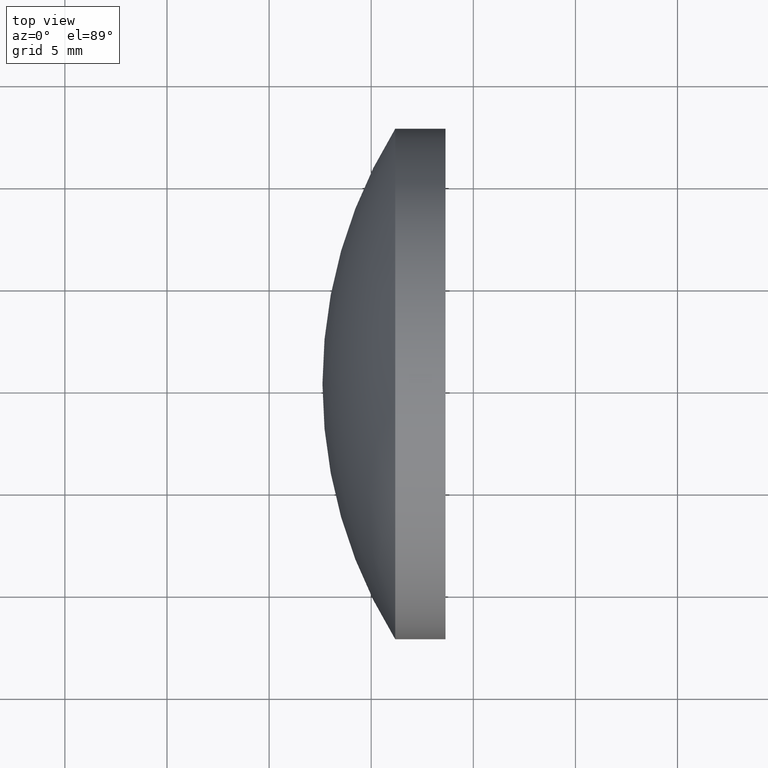
[diagram: clean part render]
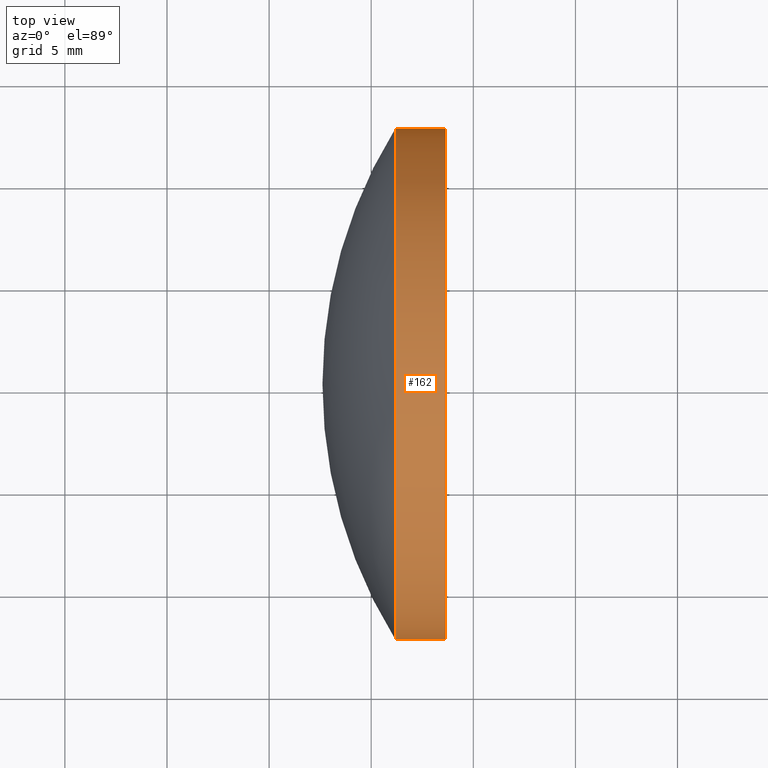
[diagram: same view with one face highlighted and labeled with its STEP entity id]
A machine part, top view. The second image highlights one B-rep face of the part: STEP entity #162.
In plain terms, the highlighted cylindrical surface (partial cylindrical patch) has radius 12.5 mm, axis along (-1, -0, -0).
Its self-contained STEP definition (entity closure, byte-faithful):
#1 = EDGE_CURVE ( 'NONE', #27, #183, #155, .T. ) ;
#8 = CARTESIAN_POINT ( 'NONE',  ( 115.9444912979631500, 77.71684047094031200, 1.530808498934189500E-015 ) ) ;
#15 = ORIENTED_EDGE ( 'NONE', *, *, #161, .T. ) ;
#17 = CARTESIAN_POINT ( 'NONE',  ( 115.9444912979631800, 52.71684047094034000, 0.0000000000000000000 ) ) ;
#20 = DIRECTION ( 'NONE',  ( 0.0000000000000000000, -1.000000000000000000, 0.0000000000000000000 ) ) ;
#22 = CARTESIAN_POINT ( 'NONE',  ( 128.6408507947504100, 77.71684047094034000, 0.0000000000000000000 ) ) ;
#23 = DIRECTION ( 'NONE',  ( -1.000000000000000000, -6.937607244762875000E-016, -0.0000000000000000000 ) ) ;
#26 = CIRCLE ( 'NONE', #58, 12.49999999999999100 ) ;
#27 = VERTEX_POINT ( 'NONE', #45 ) ;
#39 = CARTESIAN_POINT ( 'NONE',  ( 115.9444912979631700, 65.21684047094032600, 0.0000000000000000000 ) ) ;
#43 = EDGE_CURVE ( 'NONE', #27, #98, #109, .T. ) ;
#44 = CYLINDRICAL_SURFACE ( 'NONE', #190, 12.49999999999998400 ) ;
#45 = CARTESIAN_POINT ( 'NONE',  ( 128.6408507947504600, 52.71684047094027600, -1.530808498934191500E-015 ) ) ;
#52 = ORIENTED_EDGE ( 'NONE', *, *, #63, .F. ) ;
#53 = VECTOR ( 'NONE', #144, 1000.000000000000000 ) ;
#54 = DIRECTION ( 'NONE',  ( 0.0000000000000000000, -1.000000000000000000, 0.0000000000000000000 ) ) ;
#58 = AXIS2_PLACEMENT_3D ( 'NONE', #127, #23, #54 ) ;
#63 = EDGE_CURVE ( 'NONE', #183, #125, #26, .T. ) ;
#71 = AXIS2_PLACEMENT_3D ( 'NONE', #76, #108, #20 ) ;
#73 = ORIENTED_EDGE ( 'NONE', *, *, #43, .T. ) ;
#76 = CARTESIAN_POINT ( 'NONE',  ( 128.6408507947504300, 65.21684047094034000, 0.0000000000000000000 ) ) ;
#78 = DIRECTION ( 'NONE',  ( -1.000000000000000000, -6.937607244762875000E-016, -0.0000000000000000000 ) ) ;
#94 = DIRECTION ( 'NONE',  ( -1.000000000000000000, -6.937607244762875000E-016, -0.0000000000000000000 ) ) ;
#98 = VERTEX_POINT ( 'NONE', #22 ) ;
#108 = DIRECTION ( 'NONE',  ( -1.000000000000000000, -6.937607244762875000E-016, -0.0000000000000000000 ) ) ;
#109 = CIRCLE ( 'NONE', #71, 12.49999999999999100 ) ;
#110 = DIRECTION ( 'NONE',  ( 1.110223024625157900E-015, -1.000000000000000000, 0.0000000000000000000 ) ) ;
#112 = CARTESIAN_POINT ( 'NONE',  ( 126.1766529806496800, 77.71684047094034000, 1.530808498934190300E-015 ) ) ;
#119 = EDGE_LOOP ( 'NONE', ( #73, #15, #52, #172 ) ) ;
#123 = FACE_OUTER_BOUND ( 'NONE', #119, .T. ) ;
#125 = VERTEX_POINT ( 'NONE', #112 ) ;
#127 = CARTESIAN_POINT ( 'NONE',  ( 126.1766529806496800, 65.21684047094034000, 0.0000000000000000000 ) ) ;
#136 = CARTESIAN_POINT ( 'NONE',  ( 126.1766529806496800, 52.71684047094034800, 0.0000000000000000000 ) ) ;
#144 = DIRECTION ( 'NONE',  ( -1.000000000000000000, -6.937607244762875000E-016, -0.0000000000000000000 ) ) ;
#155 = LINE ( 'NONE', #17, #186 ) ;
#160 = LINE ( 'NONE', #8, #53 ) ;
#161 = EDGE_CURVE ( 'NONE', #98, #125, #160, .T. ) ;
#162 = ADVANCED_FACE ( 'NONE', ( #123 ), #44, .T. ) ;
#172 = ORIENTED_EDGE ( 'NONE', *, *, #1, .F. ) ;
#183 = VERTEX_POINT ( 'NONE', #136 ) ;
#186 = VECTOR ( 'NONE', #78, 1000.000000000000000 ) ;
#190 = AXIS2_PLACEMENT_3D ( 'NONE', #39, #94, #110 ) ;